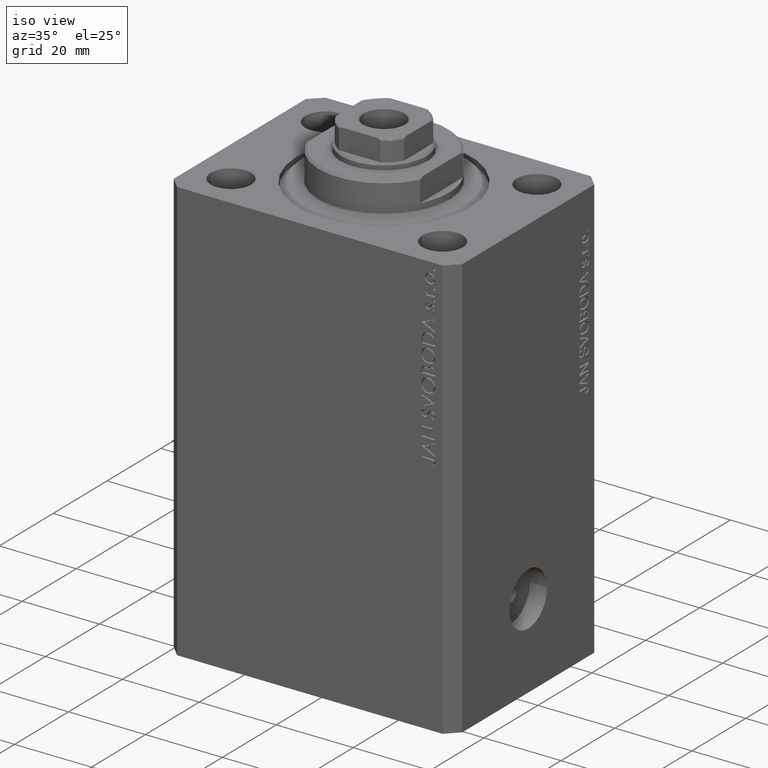
[diagram: clean part render]
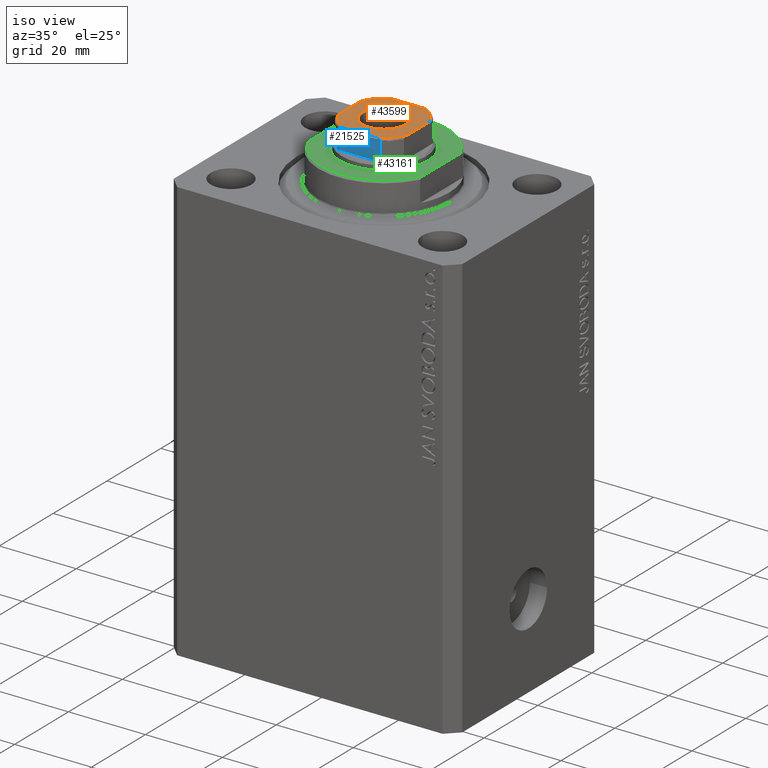
[diagram: same view with three faces highlighted in distinct colors, each labeled with its STEP entity id]
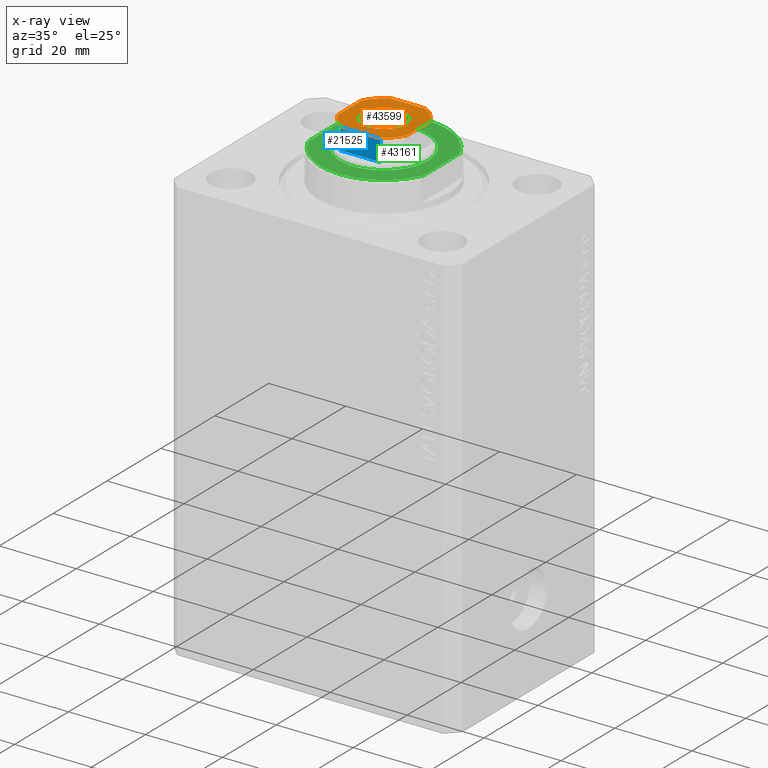
[diagram: x-ray of the same camera — body ghosted, the three highlighted faces saturated]
A machine part, iso view with three faces highlighted in distinct colors.
The next image is the same camera in x-ray (body ghosted, the three faces saturated) — at least one of them is partly hidden behind the body in this view.
Their STEP definitions:

[orange] entity #43599 — the highlighted planar face has unit normal (0, 0, 1).
#23 = DIRECTION ( 'NONE',  ( 1.000000000000000000, 0.000000000000000000, 0.000000000000000000 ) ) ;
#220 = CARTESIAN_POINT ( 'NONE',  ( 0.000000000000000000, 0.000000000000000000, 114.9999999999999858 ) ) ;
#254 = CARTESIAN_POINT ( 'NONE',  ( 0.000000000000000000, 0.000000000000000000, 114.9999999999999858 ) ) ;
#858 = CARTESIAN_POINT ( 'NONE',  ( -9.000000000000000000, 4.358898943540674864, 114.9999999999999858 ) ) ;
#1582 = CARTESIAN_POINT ( 'NONE',  ( 4.358898943540671311, -9.000000000000001776, 114.9999999999999858 ) ) ;
#2785 = VERTEX_POINT ( 'NONE', #29913 ) ;
#3555 = DIRECTION ( 'NONE',  ( 1.000000000000000000, 0.000000000000000000, 0.000000000000000000 ) ) ;
#4779 = ORIENTED_EDGE ( 'NONE', *, *, #38378, .T. ) ;
#4803 = CARTESIAN_POINT ( 'NONE',  ( 0.000000000000000000, 0.000000000000000000, 114.9999999999999858 ) ) ;
#5165 = EDGE_LOOP ( 'NONE', ( #25518, #10125 ) ) ;
#5183 = AXIS2_PLACEMENT_3D ( 'NONE', #6951, #40400, #3555 ) ;
#5210 = VECTOR ( 'NONE', #27361, 1000.000000000000000 ) ;
#5620 = ORIENTED_EDGE ( 'NONE', *, *, #14387, .T. ) ;
#5772 = ORIENTED_EDGE ( 'NONE', *, *, #24616, .T. ) ;
#5865 = ORIENTED_EDGE ( 'NONE', *, *, #41391, .T. ) ;
#5903 = FACE_OUTER_BOUND ( 'NONE', #29064, .T. ) ;
#6088 = ORIENTED_EDGE ( 'NONE', *, *, #38353, .T. ) ;
#6951 = CARTESIAN_POINT ( 'NONE',  ( 0.000000000000000000, 0.000000000000000000, 114.9999999999999858 ) ) ;
#7092 = VERTEX_POINT ( 'NONE', #24194 ) ;
#8879 = LINE ( 'NONE', #36159, #25606 ) ;
#9341 = LINE ( 'NONE', #13407, #5210 ) ;
#9783 = CARTESIAN_POINT ( 'NONE',  ( 5.549999999999998934, 0.000000000000000000, 114.9999999999999858 ) ) ;
#10125 = ORIENTED_EDGE ( 'NONE', *, *, #30256, .T. ) ;
#11746 = DIRECTION ( 'NONE',  ( 1.000000000000000000, 0.000000000000000000, 0.000000000000000000 ) ) ;
#12851 = CARTESIAN_POINT ( 'NONE',  ( 0.000000000000000000, 0.000000000000000000, 114.9999999999999858 ) ) ;
#13183 = CARTESIAN_POINT ( 'NONE',  ( 9.000000000000000000, 8.999999999999998224, 114.9999999999999858 ) ) ;
#13407 = CARTESIAN_POINT ( 'NONE',  ( -9.000000000000000000, 8.999999999999998224, 114.9999999999999858 ) ) ;
#13500 = DIRECTION ( 'NONE',  ( 1.000000000000000000, 0.000000000000000000, 0.000000000000000000 ) ) ;
#13992 = DIRECTION ( 'NONE',  ( 1.000000000000000000, 0.000000000000000000, 0.000000000000000000 ) ) ;
#14387 = EDGE_CURVE ( 'NONE', #29760, #33180, #39084, .T. ) ;
#14523 = DIRECTION ( 'NONE',  ( 1.000000000000000000, 0.000000000000000000, 0.000000000000000000 ) ) ;
#14755 = DIRECTION ( 'NONE',  ( -0.000000000000000000, 0.000000000000000000, 1.000000000000000000 ) ) ;
#14932 = EDGE_CURVE ( 'NONE', #40365, #2785, #17495, .T. ) ;
#15466 = CIRCLE ( 'NONE', #21235, 10.00000000000000000 ) ;
#16746 = VERTEX_POINT ( 'NONE', #38103 ) ;
#17495 = CIRCLE ( 'NONE', #18949, 5.549999999999998934 ) ;
#18147 = CARTESIAN_POINT ( 'NONE',  ( -4.358898943540678417, 8.999999999999998224, 114.9999999999999858 ) ) ;
#18691 = CARTESIAN_POINT ( 'NONE',  ( 9.000000000000001776, -4.358898943540675752, 114.9999999999999858 ) ) ;
#18917 = AXIS2_PLACEMENT_3D ( 'NONE', #4803, #25552, #35700 ) ;
#18949 = AXIS2_PLACEMENT_3D ( 'NONE', #32254, #42614, #11746 ) ;
#20936 = CARTESIAN_POINT ( 'NONE',  ( -8.999999999999998224, -9.000000000000001776, 114.9999999999999858 ) ) ;
#21235 = AXIS2_PLACEMENT_3D ( 'NONE', #254, #34521, #23 ) ;
#21826 = AXIS2_PLACEMENT_3D ( 'NONE', #12851, #41219, #36964 ) ;
#22419 = ORIENTED_EDGE ( 'NONE', *, *, #38461, .T. ) ;
#23601 = EDGE_CURVE ( 'NONE', #29238, #29760, #8879, .T. ) ;
#23777 = DIRECTION ( 'NONE',  ( -9.637352644315595243E-17, 1.000000000000000000, -0.000000000000000000 ) ) ;
#24104 = PLANE ( 'NONE',  #5183 ) ;
#24194 = CARTESIAN_POINT ( 'NONE',  ( -4.358898943540671311, -9.000000000000001776, 114.9999999999999858 ) ) ;
#24616 = EDGE_CURVE ( 'NONE', #30722, #7092, #15466, .T. ) ;
#25518 = ORIENTED_EDGE ( 'NONE', *, *, #14932, .T. ) ;
#25552 = DIRECTION ( 'NONE',  ( -0.000000000000000000, 0.000000000000000000, 1.000000000000000000 ) ) ;
#25606 = VECTOR ( 'NONE', #39339, 1000.000000000000000 ) ;
#26076 = VECTOR ( 'NONE', #23777, 1000.000000000000000 ) ;
#26139 = AXIS2_PLACEMENT_3D ( 'NONE', #220, #27496, #13992 ) ;
#26648 = FACE_BOUND ( 'NONE', #5165, .T. ) ;
#26917 = VECTOR ( 'NONE', #13500, 1000.000000000000000 ) ;
#26948 = VERTEX_POINT ( 'NONE', #1582 ) ;
#27361 = DIRECTION ( 'NONE',  ( 9.637352644315595243E-17, -1.000000000000000000, 0.000000000000000000 ) ) ;
#27496 = DIRECTION ( 'NONE',  ( 0.000000000000000000, -0.000000000000000000, -1.000000000000000000 ) ) ;
#27683 = LINE ( 'NONE', #20936, #26917 ) ;
#27803 = CARTESIAN_POINT ( 'NONE',  ( 0.000000000000000000, 0.000000000000000000, 114.9999999999999858 ) ) ;
#28110 = CARTESIAN_POINT ( 'NONE',  ( 4.358898943540677529, 8.999999999999998224, 114.9999999999999858 ) ) ;
#29064 = EDGE_LOOP ( 'NONE', ( #4779, #5772, #34386, #5865, #6088, #22419, #39899, #5620 ) ) ;
#29238 = VERTEX_POINT ( 'NONE', #28110 ) ;
#29760 = VERTEX_POINT ( 'NONE', #18147 ) ;
#29913 = CARTESIAN_POINT ( 'NONE',  ( -5.549999999999998934, 6.796789735267809794E-16, 114.9999999999999858 ) ) ;
#30256 = EDGE_CURVE ( 'NONE', #2785, #40365, #35510, .T. ) ;
#30425 = CIRCLE ( 'NONE', #18917, 10.00000000000000000 ) ;
#30722 = VERTEX_POINT ( 'NONE', #36663 ) ;
#32254 = CARTESIAN_POINT ( 'NONE',  ( 0.000000000000000000, 0.000000000000000000, 114.9999999999999858 ) ) ;
#33180 = VERTEX_POINT ( 'NONE', #858 ) ;
#33468 = LINE ( 'NONE', #13183, #26076 ) ;
#34386 = ORIENTED_EDGE ( 'NONE', *, *, #42744, .T. ) ;
#34521 = DIRECTION ( 'NONE',  ( -0.000000000000000000, 0.000000000000000000, 1.000000000000000000 ) ) ;
#35428 = VERTEX_POINT ( 'NONE', #18691 ) ;
#35510 = CIRCLE ( 'NONE', #26139, 5.549999999999998934 ) ;
#35700 = DIRECTION ( 'NONE',  ( 1.000000000000000000, 0.000000000000000000, 0.000000000000000000 ) ) ;
#36159 = CARTESIAN_POINT ( 'NONE',  ( -9.000000000000000000, 8.999999999999998224, 114.9999999999999858 ) ) ;
#36663 = CARTESIAN_POINT ( 'NONE',  ( -9.000000000000000000, -4.358898943540675752, 114.9999999999999858 ) ) ;
#36964 = DIRECTION ( 'NONE',  ( 1.000000000000000000, 0.000000000000000000, 0.000000000000000000 ) ) ;
#38103 = CARTESIAN_POINT ( 'NONE',  ( 9.000000000000000000, 4.358898943540675752, 114.9999999999999858 ) ) ;
#38353 = EDGE_CURVE ( 'NONE', #35428, #16746, #33468, .T. ) ;
#38378 = EDGE_CURVE ( 'NONE', #33180, #30722, #9341, .T. ) ;
#38413 = AXIS2_PLACEMENT_3D ( 'NONE', #27803, #14755, #14523 ) ;
#38461 = EDGE_CURVE ( 'NONE', #16746, #29238, #30425, .T. ) ;
#39084 = CIRCLE ( 'NONE', #21826, 10.00000000000000000 ) ;
#39339 = DIRECTION ( 'NONE',  ( -1.000000000000000000, -0.000000000000000000, -0.000000000000000000 ) ) ;
#39899 = ORIENTED_EDGE ( 'NONE', *, *, #23601, .T. ) ;
#40365 = VERTEX_POINT ( 'NONE', #9783 ) ;
#40400 = DIRECTION ( 'NONE',  ( -0.000000000000000000, 0.000000000000000000, 1.000000000000000000 ) ) ;
#41219 = DIRECTION ( 'NONE',  ( -0.000000000000000000, 0.000000000000000000, 1.000000000000000000 ) ) ;
#41391 = EDGE_CURVE ( 'NONE', #26948, #35428, #42011, .T. ) ;
#42011 = CIRCLE ( 'NONE', #38413, 10.00000000000000000 ) ;
#42614 = DIRECTION ( 'NONE',  ( 0.000000000000000000, -0.000000000000000000, -1.000000000000000000 ) ) ;
#42744 = EDGE_CURVE ( 'NONE', #7092, #26948, #27683, .T. ) ;
#43599 = ADVANCED_FACE ( 'NONE', ( #26648, #5903 ), #24104, .T. ) ;

[blue] entity #21525 — the highlighted planar face has unit normal (0, 1, 0).
#859 = ORIENTED_EDGE ( 'NONE', *, *, #32860, .F. ) ;
#1582 = CARTESIAN_POINT ( 'NONE',  ( 4.358898943540671311, -9.000000000000001776, 114.9999999999999858 ) ) ;
#1606 = CARTESIAN_POINT ( 'NONE',  ( -4.569272810556661568, -9.000000000000003553, 115.0000000000000142 ) ) ;
#1699 = EDGE_CURVE ( 'NONE', #4274, #38560, #38865, .T. ) ;
#1814 = LINE ( 'NONE', #28865, #29158 ) ;
#3206 = VECTOR ( 'NONE', #41718, 1000.000000000000000 ) ;
#3983 = ORIENTED_EDGE ( 'NONE', *, *, #1699, .T. ) ;
#4274 = VERTEX_POINT ( 'NONE', #20995 ) ;
#4355 = CARTESIAN_POINT ( 'NONE',  ( 5.077896145217234647, -9.000000000000003553, 114.8773016776066811 ) ) ;
#4777 = CARTESIAN_POINT ( 'NONE',  ( -4.358898943540671311, -9.000000000000001776, 114.9999999999999858 ) ) ;
#5034 = EDGE_CURVE ( 'NONE', #38560, #26948, #38835, .T. ) ;
#5201 = CARTESIAN_POINT ( 'NONE',  ( -5.335288102212750516, -9.000000000000001776, 114.6956905402762175 ) ) ;
#6530 = ORIENTED_EDGE ( 'NONE', *, *, #35110, .T. ) ;
#6854 = AXIS2_PLACEMENT_3D ( 'NONE', #26001, #15871, #39752 ) ;
#7092 = VERTEX_POINT ( 'NONE', #24194 ) ;
#7269 = VERTEX_POINT ( 'NONE', #40771 ) ;
#12236 = CARTESIAN_POINT ( 'NONE',  ( 5.174818616237118363, -9.000000000000005329, 114.8325218846533318 ) ) ;
#13392 = CARTESIAN_POINT ( 'NONE',  ( -5.408326913195988794, -8.999999999999998224, 109.4999999999999858 ) ) ;
#13500 = DIRECTION ( 'NONE',  ( 1.000000000000000000, 0.000000000000000000, 0.000000000000000000 ) ) ;
#14945 = CARTESIAN_POINT ( 'NONE',  ( -5.173732970196568637, -9.000000000000001776, 114.8331808643798553 ) ) ;
#15425 = FACE_OUTER_BOUND ( 'NONE', #28623, .T. ) ;
#15605 = CARTESIAN_POINT ( 'NONE',  ( -5.408326913195988794, -8.999999999999998224, 114.4999999999999858 ) ) ;
#15626 = CARTESIAN_POINT ( 'NONE',  ( 5.390954572107320431, -9.000000000000005329, 114.6053628521399901 ) ) ;
#15645 = PLANE ( 'NONE',  #6854 ) ;
#15871 = DIRECTION ( 'NONE',  ( 0.000000000000000000, 1.000000000000000000, 0.000000000000000000 ) ) ;
#17368 = LINE ( 'NONE', #31118, #3206 ) ;
#18117 = CARTESIAN_POINT ( 'NONE',  ( 4.778533838065913919, -9.000000000000001776, 114.9778291476469718 ) ) ;
#18544 = CARTESIAN_POINT ( 'NONE',  ( -5.297634495023393342, -9.000000000000001776, 114.7344228052780011 ) ) ;
#20936 = CARTESIAN_POINT ( 'NONE',  ( -8.999999999999998224, -9.000000000000001776, 114.9999999999999858 ) ) ;
#20995 = CARTESIAN_POINT ( 'NONE',  ( 5.408326913195988794, -8.999999999999998224, 109.4999999999999858 ) ) ;
#21525 = ADVANCED_FACE ( 'NONE', ( #15425 ), #15645, .F. ) ;
#21938 = CARTESIAN_POINT ( 'NONE',  ( -5.408326913195980801, -9.000000000000001776, 114.5537434673188102 ) ) ;
#21958 = CARTESIAN_POINT ( 'NONE',  ( 4.358898943540671311, -9.000000000000001776, 114.9999999999999858 ) ) ;
#22172 = CARTESIAN_POINT ( 'NONE',  ( 5.335664150027720432, -9.000000000000000000, 114.6951843380012832 ) ) ;
#22811 = CARTESIAN_POINT ( 'NONE',  ( -5.390945448132520745, -9.000000000000001776, 114.6054816538970158 ) ) ;
#24194 = CARTESIAN_POINT ( 'NONE',  ( -4.358898943540671311, -9.000000000000001776, 114.9999999999999858 ) ) ;
#26001 = CARTESIAN_POINT ( 'NONE',  ( -8.999999999999998224, -9.000000000000001776, 114.9999999999999858 ) ) ;
#26917 = VECTOR ( 'NONE', #13500, 1000.000000000000000 ) ;
#26948 = VERTEX_POINT ( 'NONE', #1582 ) ;
#27683 = LINE ( 'NONE', #20936, #26917 ) ;
#28623 = EDGE_LOOP ( 'NONE', ( #30192, #33282, #859, #6530, #3983, #42945 ) ) ;
#28704 = VECTOR ( 'NONE', #35256, 1000.000000000000000 ) ;
#28865 = CARTESIAN_POINT ( 'NONE',  ( -8.999999999999998224, -9.000000000000001776, 109.4999999999999858 ) ) ;
#28886 = CARTESIAN_POINT ( 'NONE',  ( -5.074490744525474994, -9.000000000000000000, 114.8787200784332185 ) ) ;
#29089 = DIRECTION ( 'NONE',  ( 1.000000000000000000, 0.000000000000000000, 0.000000000000000000 ) ) ;
#29158 = VECTOR ( 'NONE', #29089, 1000.000000000000000 ) ;
#29335 = CARTESIAN_POINT ( 'NONE',  ( -4.775913644518296586, -9.000000000000003553, 114.9781460743083272 ) ) ;
#29355 = CARTESIAN_POINT ( 'NONE',  ( 4.569278586016983112, -9.000000000000001776, 114.9999999999999858 ) ) ;
#30087 = EDGE_CURVE ( 'NONE', #7092, #7269, #36334, .T. ) ;
#30192 = ORIENTED_EDGE ( 'NONE', *, *, #42744, .F. ) ;
#31118 = CARTESIAN_POINT ( 'NONE',  ( -5.408326913195988794, -8.999999999999998224, -0.001000000000001000089 ) ) ;
#32097 = CARTESIAN_POINT ( 'NONE',  ( 5.408326913195988794, -8.999999999999998224, 114.4999999999999858 ) ) ;
#32306 = CARTESIAN_POINT ( 'NONE',  ( 5.298186678102087654, -9.000000000000001776, 114.7338781215004673 ) ) ;
#32424 = VERTEX_POINT ( 'NONE', #13392 ) ;
#32860 = EDGE_CURVE ( 'NONE', #32424, #7269, #17368, .T. ) ;
#33282 = ORIENTED_EDGE ( 'NONE', *, *, #30087, .T. ) ;
#35110 = EDGE_CURVE ( 'NONE', #32424, #4274, #1814, .T. ) ;
#35256 = DIRECTION ( 'NONE',  ( -0.000000000000000000, -0.000000000000000000, 1.000000000000000000 ) ) ;
#36334 = B_SPLINE_CURVE_WITH_KNOTS ( 'NONE', 3,
 ( #4777, #1606, #29335, #28886, #14945, #18544, #5201, #22811, #21938, #15605 ),
 .UNSPECIFIED., .F., .F.,
 ( 4, 2, 2, 2, 4 ),
 ( 0.000000000000000000, 0.0006221106941441024865, 0.0009331660412161548682, 0.001088693714752182089, 0.001244221388288209310 ),
 .UNSPECIFIED. ) ;
#38560 = VERTEX_POINT ( 'NONE', #43102 ) ;
#38835 = B_SPLINE_CURVE_WITH_KNOTS ( 'NONE', 3,
 ( #32097, #39728, #15626, #22172, #32306, #12236, #4355, #18117, #29355, #21958 ),
 .UNSPECIFIED., .F., .F.,
 ( 4, 2, 2, 2, 4 ),
 ( 0.000000000000000000, 0.0001582447020888256195, 0.0003164894041776512390, 0.0006329788083552763487, 0.001265957616710526893 ),
 .UNSPECIFIED. ) ;
#38865 = LINE ( 'NONE', #42025, #28704 ) ;
#39728 = CARTESIAN_POINT ( 'NONE',  ( 5.408326913195990571, -9.000000000000000000, 114.5535720727335161 ) ) ;
#39752 = DIRECTION ( 'NONE',  ( 0.000000000000000000, -0.000000000000000000, 1.000000000000000000 ) ) ;
#40771 = CARTESIAN_POINT ( 'NONE',  ( -5.408326913195988794, -8.999999999999998224, 114.4999999999999858 ) ) ;
#41718 = DIRECTION ( 'NONE',  ( -0.000000000000000000, -0.000000000000000000, 1.000000000000000000 ) ) ;
#42025 = CARTESIAN_POINT ( 'NONE',  ( 5.408326913195988794, -8.999999999999998224, -0.001000000000001000089 ) ) ;
#42744 = EDGE_CURVE ( 'NONE', #7092, #26948, #27683, .T. ) ;
#42945 = ORIENTED_EDGE ( 'NONE', *, *, #5034, .T. ) ;
#43102 = CARTESIAN_POINT ( 'NONE',  ( 5.408326913195988794, -8.999999999999998224, 114.4999999999999858 ) ) ;

[green] entity #43161 — the highlighted planar face has unit normal (0, 0, 1).
#811 = DIRECTION ( 'NONE',  ( -1.000000000000000000, 0.000000000000000000, -0.000000000000000000 ) ) ;
#887 = CARTESIAN_POINT ( 'NONE',  ( 14.99999999999999645, 6.873863542433781504, -8.000000000000000000 ) ) ;
#1036 = PLANE ( 'NONE',  #28945 ) ;
#1113 = AXIS2_PLACEMENT_3D ( 'NONE', #23627, #34203, #30378 ) ;
#1126 = EDGE_CURVE ( 'NONE', #35746, #28122, #26524, .T. ) ;
#1241 = EDGE_LOOP ( 'NONE', ( #4292, #33502 ) ) ;
#2360 = CIRCLE ( 'NONE', #23267, 11.49999999999998934 ) ;
#2521 = CIRCLE ( 'NONE', #1113, 16.50000000000000711 ) ;
#4292 = ORIENTED_EDGE ( 'NONE', *, *, #38129, .T. ) ;
#4635 = DIRECTION ( 'NONE',  ( -0.000000000000000000, -0.000000000000000000, 1.000000000000000000 ) ) ;
#7033 = ORIENTED_EDGE ( 'NONE', *, *, #1126, .T. ) ;
#7278 = EDGE_CURVE ( 'NONE', #28122, #34135, #20702, .T. ) ;
#7349 = CIRCLE ( 'NONE', #40466, 11.49999999999998934 ) ;
#7399 = DIRECTION ( 'NONE',  ( -1.000000000000000000, 0.000000000000000000, 0.000000000000000000 ) ) ;
#7596 = ORIENTED_EDGE ( 'NONE', *, *, #28950, .F. ) ;
#8057 = ORIENTED_EDGE ( 'NONE', *, *, #7278, .T. ) ;
#8236 = CARTESIAN_POINT ( 'NONE',  ( 0.000000000000000000, 0.000000000000000000, -8.000000000000000000 ) ) ;
#8898 = DIRECTION ( 'NONE',  ( -1.000000000000000000, 0.000000000000000000, 0.000000000000000000 ) ) ;
#10501 = CARTESIAN_POINT ( 'NONE',  ( 0.000000000000000000, 0.000000000000000000, -8.000000000000000000 ) ) ;
#11462 = DIRECTION ( 'NONE',  ( -0.000000000000000000, -0.000000000000000000, 1.000000000000000000 ) ) ;
#12439 = VECTOR ( 'NONE', #15322, 1000.000000000000000 ) ;
#14200 = DIRECTION ( 'NONE',  ( -1.000000000000000000, 0.000000000000000000, 0.000000000000000000 ) ) ;
#14417 = EDGE_CURVE ( 'NONE', #14852, #22117, #2360, .T. ) ;
#14852 = VERTEX_POINT ( 'NONE', #38795 ) ;
#15322 = DIRECTION ( 'NONE',  ( -0.000000000000000000, -1.000000000000000000, -0.000000000000000000 ) ) ;
#16438 = DIRECTION ( 'NONE',  ( 0.000000000000000000, -1.000000000000000000, -0.000000000000000000 ) ) ;
#17353 = CARTESIAN_POINT ( 'NONE',  ( -11.49999999999998934, 0.000000000000000000, -8.000000000000000000 ) ) ;
#17951 = FACE_BOUND ( 'NONE', #1241, .T. ) ;
#20702 = LINE ( 'NONE', #27224, #33039 ) ;
#22117 = VERTEX_POINT ( 'NONE', #17353 ) ;
#23267 = AXIS2_PLACEMENT_3D ( 'NONE', #38965, #11462, #7399 ) ;
#23627 = CARTESIAN_POINT ( 'NONE',  ( 0.000000000000000000, 0.000000000000000000, -8.000000000000000000 ) ) ;
#24261 = DIRECTION ( 'NONE',  ( 0.000000000000000000, 0.000000000000000000, -1.000000000000000000 ) ) ;
#25091 = EDGE_CURVE ( 'NONE', #34135, #37174, #2521, .T. ) ;
#25244 = CARTESIAN_POINT ( 'NONE',  ( -15.00000000000000000, -42.42640687119285303, -8.000000000000000000 ) ) ;
#25304 = EDGE_LOOP ( 'NONE', ( #7033, #8057, #43217, #7596 ) ) ;
#26524 = CIRCLE ( 'NONE', #38755, 16.50000000000000711 ) ;
#27224 = CARTESIAN_POINT ( 'NONE',  ( 15.00000000000000000, -42.42640687119285303, -8.000000000000000000 ) ) ;
#28122 = VERTEX_POINT ( 'NONE', #887 ) ;
#28945 = AXIS2_PLACEMENT_3D ( 'NONE', #10501, #24261, #811 ) ;
#28950 = EDGE_CURVE ( 'NONE', #35746, #37174, #42587, .T. ) ;
#30378 = DIRECTION ( 'NONE',  ( -1.000000000000000000, 0.000000000000000000, 0.000000000000000000 ) ) ;
#31254 = FACE_OUTER_BOUND ( 'NONE', #25304, .T. ) ;
#31326 = DIRECTION ( 'NONE',  ( 0.000000000000000000, 0.000000000000000000, -1.000000000000000000 ) ) ;
#33039 = VECTOR ( 'NONE', #16438, 1000.000000000000000 ) ;
#33502 = ORIENTED_EDGE ( 'NONE', *, *, #14417, .T. ) ;
#33636 = CARTESIAN_POINT ( 'NONE',  ( 0.000000000000000000, 0.000000000000000000, -8.000000000000000000 ) ) ;
#34135 = VERTEX_POINT ( 'NONE', #39616 ) ;
#34203 = DIRECTION ( 'NONE',  ( 0.000000000000000000, 0.000000000000000000, -1.000000000000000000 ) ) ;
#35746 = VERTEX_POINT ( 'NONE', #43396 ) ;
#37174 = VERTEX_POINT ( 'NONE', #42415 ) ;
#38129 = EDGE_CURVE ( 'NONE', #22117, #14852, #7349, .T. ) ;
#38755 = AXIS2_PLACEMENT_3D ( 'NONE', #33636, #31326, #14200 ) ;
#38795 = CARTESIAN_POINT ( 'NONE',  ( 11.49999999999998934, 1.408343819019454795E-15, -8.000000000000000000 ) ) ;
#38965 = CARTESIAN_POINT ( 'NONE',  ( 0.000000000000000000, 0.000000000000000000, -8.000000000000000000 ) ) ;
#39616 = CARTESIAN_POINT ( 'NONE',  ( 14.99999999999999645, -6.873863542433781504, -8.000000000000000000 ) ) ;
#40466 = AXIS2_PLACEMENT_3D ( 'NONE', #8236, #4635, #8898 ) ;
#42415 = CARTESIAN_POINT ( 'NONE',  ( -15.00000000000000000, -6.873863542433783280, -8.000000000000000000 ) ) ;
#42587 = LINE ( 'NONE', #25244, #12439 ) ;
#43161 = ADVANCED_FACE ( 'NONE', ( #17951, #31254 ), #1036, .T. ) ;
#43217 = ORIENTED_EDGE ( 'NONE', *, *, #25091, .T. ) ;
#43396 = CARTESIAN_POINT ( 'NONE',  ( -14.99999999999999645, 6.873863542433781504, -8.000000000000000000 ) ) ;